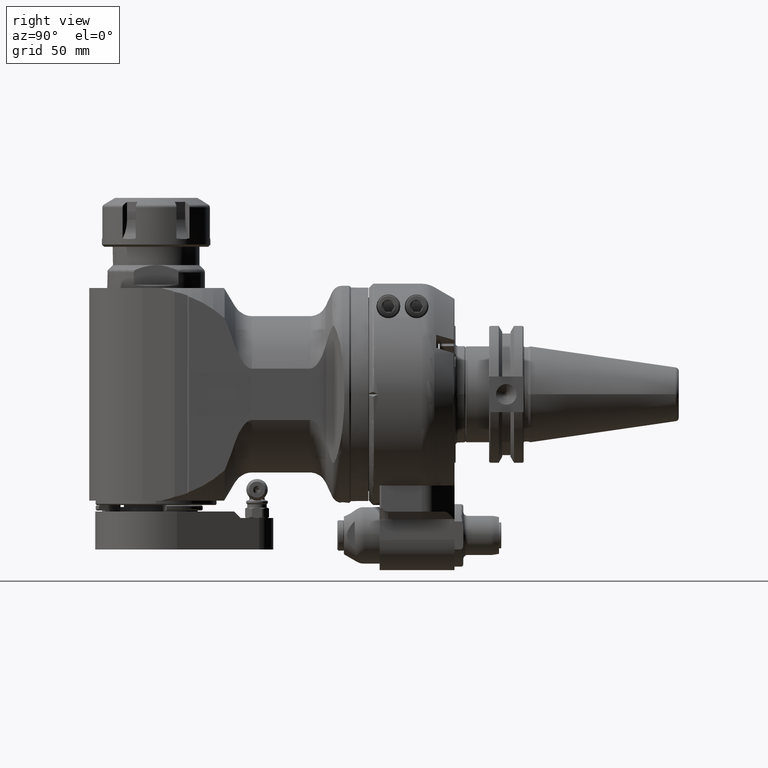
[diagram: clean part render]
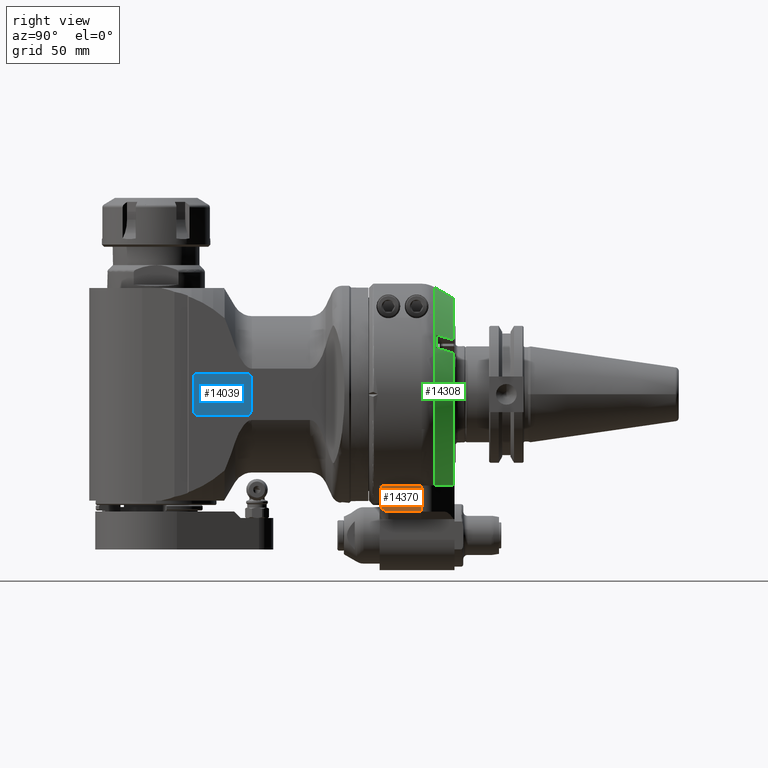
[diagram: same view with three faces highlighted in distinct colors, each labeled with its STEP entity id]
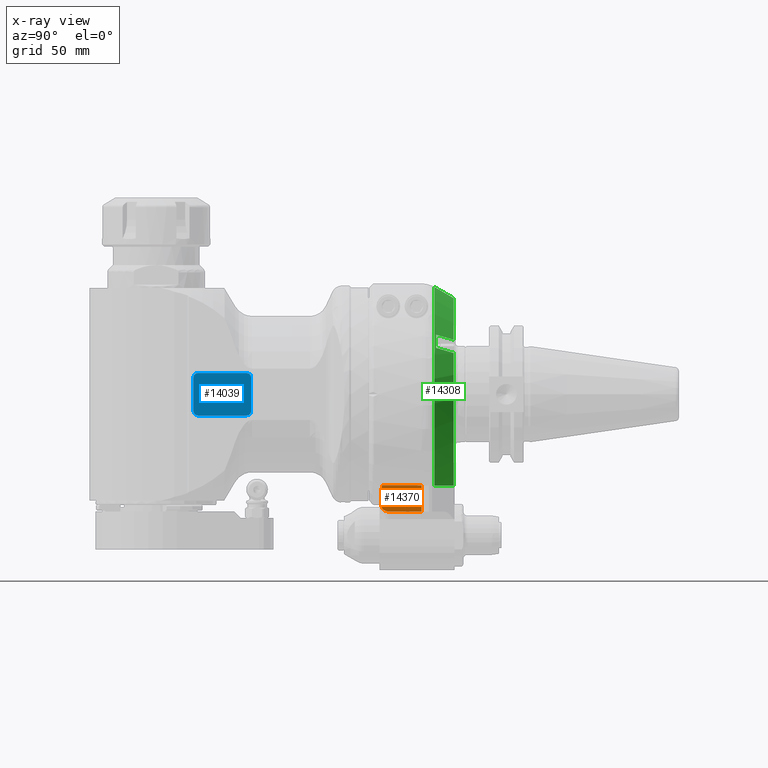
[diagram: x-ray of the same camera — body ghosted, the three highlighted faces saturated]
A machine part, right view with three faces highlighted in distinct colors.
The next image is the same camera in x-ray (body ghosted, the three faces saturated) — at least one of them is partly hidden behind the body in this view.
Their STEP definitions:

[orange] entity #14370 — the highlighted planar face has unit normal (-1, 0, 0).
#1328=LINE('',#30594,#2215);
#1382=LINE('',#31289,#2269);
#1385=LINE('',#31319,#2272);
#1386=LINE('',#31321,#2273);
#2215=VECTOR('',#19160,18.26953855035);
#2269=VECTOR('',#19438,12.03589877858);
#2272=VECTOR('',#19449,15.26953889725);
#2273=VECTOR('',#19450,10.59664825896);
#2819=PLANE('',#15909);
#3562=FACE_OUTER_BOUND('',#4519,.T.);
#4519=EDGE_LOOP('',(#12580,#12581,#12582,#12583,#12584));
#5799=B_SPLINE_CURVE_WITH_KNOTS('',3,(#31322,#31323,#31324,#31325,#31326,
#31327,#31328,#31329,#31330,#31331,#31332,#31333,#31334,#31335,#31336,#31337,
#31338,#31339),.UNSPECIFIED.,.F.,.F.,(4,1,1,1,1,1,1,1,1,1,1,1,1,1,1,4),
(0.,0.06666666666667,0.1333333333333,0.2,0.2666666666667,0.3333333333333,
0.4,0.4666666666667,0.5333333333333,0.6,0.6666666666667,0.7333333333333,
0.8,0.8666666666667,0.9333333333333,1.),.UNSPECIFIED.);
#6828=VERTEX_POINT('',#30591);
#6829=VERTEX_POINT('',#30593);
#6909=VERTEX_POINT('',#31283);
#6911=VERTEX_POINT('',#31318);
#6912=VERTEX_POINT('',#31320);
#8730=EDGE_CURVE('',#6828,#6829,#1328,.T.);
#8863=EDGE_CURVE('',#6829,#6909,#1382,.T.);
#8867=EDGE_CURVE('',#6911,#6909,#1385,.T.);
#8868=EDGE_CURVE('',#6912,#6828,#1386,.T.);
#8869=EDGE_CURVE('',#6911,#6912,#5799,.T.);
#12580=ORIENTED_EDGE('',*,*,#8867,.T.);
#12581=ORIENTED_EDGE('',*,*,#8863,.F.);
#12582=ORIENTED_EDGE('',*,*,#8730,.F.);
#12583=ORIENTED_EDGE('',*,*,#8868,.F.);
#12584=ORIENTED_EDGE('',*,*,#8869,.F.);
#14370=ADVANCED_FACE('',(#3562),#2819,.F.);
#15909=AXIS2_PLACEMENT_3D('',#31317,#19447,#19448);
#19160=DIRECTION('',(0.,1.,0.));
#19438=DIRECTION('',(2.941657496709E-10,-1.143139811099E-8,-1.));
#19447=DIRECTION('center_axis',(-1.,0.,0.));
#19448=DIRECTION('ref_axis',(0.,0.,-1.));
#19449=DIRECTION('',(2.318714747886E-10,1.,4.016106954191E-10));
#19450=DIRECTION('',(-5.163122273806E-14,-8.674213053834E-13,1.));
#30591=CARTESIAN_POINT('',(29.,6.,-42.));
#30593=CARTESIAN_POINT('',(29.,24.26953855035,-42.));
#30594=CARTESIAN_POINT('',(29.,6.,-42.));
#31283=CARTESIAN_POINT('',(29.0000000432431,24.2695384127614,-54.0358986870676));
#31289=CARTESIAN_POINT('',(29.,24.26953855035,-42.));
#31317=CARTESIAN_POINT('Origin',(29.,31.,-75.75));
#31318=CARTESIAN_POINT('',(29.,8.999999515516,-54.03589878471));
#31319=CARTESIAN_POINT('',(29.,8.999999515516,-54.03589878471));
#31320=CARTESIAN_POINT('',(29.,6.000000000009,-52.59664825896));
#31321=CARTESIAN_POINT('',(29.,6.000000000009,-52.59664825896));
#31322=CARTESIAN_POINT('Ctrl Pts',(29.,8.999999515516,-54.03589878471));
#31323=CARTESIAN_POINT('Ctrl Pts',(29.,8.941822423824,-54.03589878471));
#31324=CARTESIAN_POINT('Ctrl Pts',(29.,8.825250205095,-54.03237866056));
#31325=CARTESIAN_POINT('Ctrl Pts',(29.,8.649863222661,-54.01646159698));
#31326=CARTESIAN_POINT('Ctrl Pts',(29.,8.473571205094,-53.98980903555));
#31327=CARTESIAN_POINT('Ctrl Pts',(29.,8.295705798131,-53.95220468394));
#31328=CARTESIAN_POINT('Ctrl Pts',(29.,8.115100790789,-53.90314564314));
#31329=CARTESIAN_POINT('Ctrl Pts',(29.,7.931548709971,-53.84222486296));
#31330=CARTESIAN_POINT('Ctrl Pts',(29.,7.744868188066,-53.7690856182));
#31331=CARTESIAN_POINT('Ctrl Pts',(29.,7.55350807151,-53.6827038101));
#31332=CARTESIAN_POINT('Ctrl Pts',(29.,7.356774765178,-53.58217021859));
#31333=CARTESIAN_POINT('Ctrl Pts',(29.,7.154421994377,-53.46678645105));
#31334=CARTESIAN_POINT('Ctrl Pts',(29.,6.944619331666,-53.33482115363));
#31335=CARTESIAN_POINT('Ctrl Pts',(29.,6.725779619629,-53.18433128227));
#31336=CARTESIAN_POINT('Ctrl Pts',(29.,6.496817707885,-53.0134991793));
#31337=CARTESIAN_POINT('Ctrl Pts',(29.,6.256128857701,-52.81994752598));
#31338=CARTESIAN_POINT('Ctrl Pts',(29.,6.08671031888,-52.67391866067));
#31339=CARTESIAN_POINT('Ctrl Pts',(29.,6.000000000009,-52.59664825896));

[blue] entity #14039 — the highlighted planar face has unit normal (1, 0, -0).
#1025=LINE('',#27181,#1912);
#1028=LINE('',#27187,#1915);
#1029=LINE('',#27192,#1916);
#1030=LINE('',#27196,#1917);
#1912=VECTOR('',#17699,15.5);
#1915=VECTOR('',#17704,22.5);
#1916=VECTOR('',#17709,22.5);
#1917=VECTOR('',#17712,15.5);
#2671=PLANE('',#15215);
#3231=FACE_OUTER_BOUND('',#4135,.T.);
#4135=EDGE_LOOP('',(#10934,#10935,#10936,#10937,#10938,#10939,#10940,#10941));
#5052=CIRCLE('',#15216,2.);
#5053=CIRCLE('',#15217,2.);
#5054=CIRCLE('',#15218,2.);
#5055=CIRCLE('',#15219,2.);
#6360=VERTEX_POINT('',#27179);
#6361=VERTEX_POINT('',#27180);
#6362=VERTEX_POINT('',#27185);
#6363=VERTEX_POINT('',#27186);
#6364=VERTEX_POINT('',#27189);
#6365=VERTEX_POINT('',#27191);
#6366=VERTEX_POINT('',#27193);
#6367=VERTEX_POINT('',#27195);
#8023=EDGE_CURVE('',#6360,#6361,#1025,.T.);
#8026=EDGE_CURVE('',#6362,#6363,#1028,.T.);
#8027=EDGE_CURVE('',#6360,#6363,#5052,.T.);
#8028=EDGE_CURVE('',#6361,#6364,#5053,.T.);
#8029=EDGE_CURVE('',#6364,#6365,#1029,.T.);
#8030=EDGE_CURVE('',#6365,#6366,#5054,.T.);
#8031=EDGE_CURVE('',#6366,#6367,#1030,.T.);
#8032=EDGE_CURVE('',#6367,#6362,#5055,.T.);
#10934=ORIENTED_EDGE('',*,*,#8026,.T.);
#10935=ORIENTED_EDGE('',*,*,#8027,.F.);
#10936=ORIENTED_EDGE('',*,*,#8023,.T.);
#10937=ORIENTED_EDGE('',*,*,#8028,.T.);
#10938=ORIENTED_EDGE('',*,*,#8029,.T.);
#10939=ORIENTED_EDGE('',*,*,#8030,.T.);
#10940=ORIENTED_EDGE('',*,*,#8031,.T.);
#10941=ORIENTED_EDGE('',*,*,#8032,.T.);
#14039=ADVANCED_FACE('',(#3231),#2671,.T.);
#15215=AXIS2_PLACEMENT_3D('',#27184,#17702,#17703);
#15216=AXIS2_PLACEMENT_3D('',#27188,#17705,#17706);
#15217=AXIS2_PLACEMENT_3D('',#27190,#17707,#17708);
#15218=AXIS2_PLACEMENT_3D('',#27194,#17710,#17711);
#15219=AXIS2_PLACEMENT_3D('',#27197,#17713,#17714);
#17699=DIRECTION('',(0.,1.,0.));
#17702=DIRECTION('center_axis',(0.,0.,1.));
#17703=DIRECTION('ref_axis',(1.,0.,0.));
#17704=DIRECTION('',(1.,0.,0.));
#17705=DIRECTION('center_axis',(0.,0.,-1.));
#17706=DIRECTION('ref_axis',(1.,0.,0.));
#17707=DIRECTION('center_axis',(0.,0.,1.));
#17708=DIRECTION('ref_axis',(1.,0.,0.));
#17709=DIRECTION('',(-1.,0.,0.));
#17710=DIRECTION('center_axis',(0.,0.,1.));
#17711=DIRECTION('ref_axis',(0.,1.,0.));
#17712=DIRECTION('',(0.,-1.,0.));
#17713=DIRECTION('center_axis',(0.,0.,1.));
#17714=DIRECTION('ref_axis',(-1.,0.,0.));
#27179=CARTESIAN_POINT('',(260.8130969851,-7.75,33.6));
#27180=CARTESIAN_POINT('',(260.8130969851,7.75,33.6));
#27181=CARTESIAN_POINT('',(260.8130969851,-7.75,33.6));
#27184=CARTESIAN_POINT('Origin',(0.,0.,33.6));
#27185=CARTESIAN_POINT('',(236.3130969851,-9.75,33.6));
#27186=CARTESIAN_POINT('',(258.8130969851,-9.75,33.6));
#27187=CARTESIAN_POINT('',(236.3130969851,-9.75,33.6));
#27188=CARTESIAN_POINT('Origin',(258.8130969851,-7.75,33.6));
#27189=CARTESIAN_POINT('',(258.8130969851,9.75,33.6));
#27190=CARTESIAN_POINT('Origin',(258.8130969851,7.75,33.6));
#27191=CARTESIAN_POINT('',(236.3130969851,9.75,33.6));
#27192=CARTESIAN_POINT('',(258.8130969851,9.75,33.6));
#27193=CARTESIAN_POINT('',(234.3130969851,7.75,33.6));
#27194=CARTESIAN_POINT('Origin',(236.3130969851,7.75,33.6));
#27195=CARTESIAN_POINT('',(234.3130969851,-7.75,33.6));
#27196=CARTESIAN_POINT('',(234.3130969851,7.75,33.6));
#27197=CARTESIAN_POINT('Origin',(236.3130969851,-7.75,33.6));

[green] entity #14308 — the highlighted conical surface has half-angle 30 deg.
#540=(
BOUNDED_CURVE()
B_SPLINE_CURVE(2,(#30525,#30526,#30527),.UNSPECIFIED.,.F.,.F.)
B_SPLINE_CURVE_WITH_KNOTS((3,3),(-4.7303446066697,-2.88449165842057),
 .UNSPECIFIED.)
CURVE()
GEOMETRIC_REPRESENTATION_ITEM()
RATIONAL_B_SPLINE_CURVE((1.01131829676244,1.03049774946974,1.03298555512196))
REPRESENTATION_ITEM('')
);
#681=CONICAL_SURFACE('',#15789,46.84048999,0.523598775598299);
#3500=FACE_OUTER_BOUND('',#4446,.T.);
#4446=EDGE_LOOP('',(#12255,#12256,#12257,#12258,#12259,#12260,#12261,#12262));
#5328=CIRCLE('',#15773,48.90747728811);
#5335=CIRCLE('',#15788,44.28867513459);
#5336=CIRCLE('',#15790,44.28867513459);
#5337=CIRCLE('',#15791,49.39230484541);
#5774=B_SPLINE_CURVE_WITH_KNOTS('',3,(#30453,#30454,#30455,#30456,#30457,
#30458,#30459,#30460,#30461,#30462),.UNSPECIFIED.,.F.,.F.,(4,3,3,4),(7.66076698515017E-6,
0.3333333333333,0.6666666666667,1.),.UNSPECIFIED.);
#5775=B_SPLINE_CURVE_WITH_KNOTS('',3,(#30483,#30484,#30485,#30486,#30487,
#30488,#30489,#30490,#30491,#30492),.UNSPECIFIED.,.F.,.F.,(4,3,3,4),(0.,
0.3333333333333,0.6666666666667,0.999992845897291),.UNSPECIFIED.);
#5777=B_SPLINE_CURVE_WITH_KNOTS('',3,(#30530,#30531,#30532,#30533,#30534,
#30535,#30536,#30537,#30538,#30539),.UNSPECIFIED.,.F.,.F.,(4,3,3,4),(2.50178337008359E-6,
0.3333333333333,0.6666666666667,1.),.UNSPECIFIED.);
#6810=VERTEX_POINT('',#30450);
#6811=VERTEX_POINT('',#30452);
#6813=VERTEX_POINT('',#30466);
#6819=VERTEX_POINT('',#30481);
#6824=VERTEX_POINT('',#30519);
#6825=VERTEX_POINT('',#30523);
#6826=VERTEX_POINT('',#30524);
#6827=VERTEX_POINT('',#30529);
#8703=EDGE_CURVE('',#6811,#6810,#5774,.T.);
#8706=EDGE_CURVE('',#6813,#6810,#5328,.T.);
#8714=EDGE_CURVE('',#6813,#6819,#5775,.T.);
#8723=EDGE_CURVE('',#6824,#6819,#5335,.T.);
#8724=EDGE_CURVE('',#6825,#6826,#540,.T.);
#8725=EDGE_CURVE('',#6811,#6825,#5336,.T.);
#8726=EDGE_CURVE('',#6824,#6827,#5777,.T.);
#8727=EDGE_CURVE('',#6826,#6827,#5337,.T.);
#12255=ORIENTED_EDGE('',*,*,#8724,.F.);
#12256=ORIENTED_EDGE('',*,*,#8725,.F.);
#12257=ORIENTED_EDGE('',*,*,#8703,.T.);
#12258=ORIENTED_EDGE('',*,*,#8706,.F.);
#12259=ORIENTED_EDGE('',*,*,#8714,.T.);
#12260=ORIENTED_EDGE('',*,*,#8723,.F.);
#12261=ORIENTED_EDGE('',*,*,#8726,.T.);
#12262=ORIENTED_EDGE('',*,*,#8727,.F.);
#14308=ADVANCED_FACE('',(#3500),#681,.T.);
#15773=AXIS2_PLACEMENT_3D('',#30468,#19113,#19114);
#15788=AXIS2_PLACEMENT_3D('',#30521,#19148,#19149);
#15789=AXIS2_PLACEMENT_3D('',#30522,#19150,#19151);
#15790=AXIS2_PLACEMENT_3D('',#30528,#19152,#19153);
#15791=AXIS2_PLACEMENT_3D('',#30540,#19154,#19155);
#19113=DIRECTION('center_axis',(0.,1.,0.));
#19114=DIRECTION('ref_axis',(0.828023092261376,0.,0.560693997365684));
#19148=DIRECTION('center_axis',(0.,1.,0.));
#19149=DIRECTION('ref_axis',(0.0338687033523017,0.,0.999426290895549));
#19150=DIRECTION('center_axis',(0.,-1.,0.));
#19151=DIRECTION('ref_axis',(0.,0.,1.));
#19152=DIRECTION('center_axis',(0.,1.,0.));
#19153=DIRECTION('ref_axis',(0.902830377486504,0.,0.429996871485802));
#19154=DIRECTION('center_axis',(0.,-1.,0.));
#19155=DIRECTION('ref_axis',(0.526241939180605,0.,-0.850334887822108));
#30450=CARTESIAN_POINT('',(43.9965205788,31.,21.35995111525));
#30452=CARTESIAN_POINT('',(39.9851327385036,39.0000574311685,19.0439746816784));
#30453=CARTESIAN_POINT('Ctrl Pts',(39.9851325718324,39.0000574888253,19.0439751696042));
#30454=CARTESIAN_POINT('Ctrl Pts',(40.4021284835291,38.1686739893507,19.2847278714732));
#30455=CARTESIAN_POINT('Ctrl Pts',(40.8285997896714,37.3183137318181,19.5309511948761));
#30456=CARTESIAN_POINT('Ctrl Pts',(41.2642990955139,36.4494676081702,19.78250230639));
#30457=CARTESIAN_POINT('Ctrl Pts',(41.7000084149592,35.5806015159801,20.0340591992602));
#30458=CARTESIAN_POINT('Ctrl Pts',(42.1449461582807,34.6932487079499,20.2909441251396));
#30459=CARTESIAN_POINT('Ctrl Pts',(42.6001961920632,33.7852447443823,20.5537828546925));
#30460=CARTESIAN_POINT('Ctrl Pts',(43.0554462258456,32.8772407808149,20.8166215842453));
#30461=CARTESIAN_POINT('Ctrl Pts',(43.521008550089,31.94858566171,21.0854141174718));
#30462=CARTESIAN_POINT('Ctrl Pts',(43.9965205787995,31.,21.3599511152508));
#30466=CARTESIAN_POINT('',(40.4965205788,31.,27.42212894174));
#30468=CARTESIAN_POINT('Origin',(0.,31.,0.));
#30481=CARTESIAN_POINT('',(36.4851341375781,39.0000536663798,25.1061544459899));
#30483=CARTESIAN_POINT('Ctrl Pts',(40.4965205787991,31.,27.4221289417415));
#30484=CARTESIAN_POINT('Ctrl Pts',(40.0214323904192,31.94774015446,27.1478366482915));
#30485=CARTESIAN_POINT('Ctrl Pts',(39.5561504547519,32.8758360971199,26.8792059974849));
#30486=CARTESIAN_POINT('Ctrl Pts',(39.1009807698509,33.7836798905781,26.6164136573804));
#30487=CARTESIAN_POINT('Ctrl Pts',(38.6458110849499,34.6915236840366,26.3536213172758));
#30488=CARTESIAN_POINT('Ctrl Pts',(38.2007536508152,35.5791153282934,26.0966672878733));
#30489=CARTESIAN_POINT('Ctrl Pts',(37.7648941095113,36.4482810659344,25.8450236643726));
#30490=CARTESIAN_POINT('Ctrl Pts',(37.3290439227594,37.3174281492723,25.593385441725));
#30491=CARTESIAN_POINT('Ctrl Pts',(36.9023912340264,38.1681501169107,25.3470573970345));
#30492=CARTESIAN_POINT('Ctrl Pts',(36.4851344544523,39.000053720172,25.1061540830262));
#30519=CARTESIAN_POINT('',(1.49999993762843,39.0000000328686,44.263266303079));
#30521=CARTESIAN_POINT('Origin',(0.,39.,0.));
#30522=CARTESIAN_POINT('Origin',(0.,34.58012701892,0.));
#30523=CARTESIAN_POINT('',(14.0529977316541,38.9999999990145,-41.9999999997844));
#30524=CARTESIAN_POINT('',(25.9923022789438,30.1602540400476,-42.0000000006684));
#30525=CARTESIAN_POINT('Ctrl Pts',(14.0529977317922,38.9999999985814,-42.));
#30526=CARTESIAN_POINT('Ctrl Pts',(19.6974303639645,35.8978898919754,-42.));
#30527=CARTESIAN_POINT('Ctrl Pts',(25.9923022783559,30.1602540415666,-42.));
#30528=CARTESIAN_POINT('Origin',(0.,39.,0.));
#30529=CARTESIAN_POINT('',(1.50000009631114,30.160265019228,49.3695164173488));
#30530=CARTESIAN_POINT('Ctrl Pts',(1.5,39.0000000332564,44.2632663037565));
#30531=CARTESIAN_POINT('Ctrl Pts',(1.5,38.065418345636,44.8031570327464));
#30532=CARTESIAN_POINT('Ctrl Pts',(1.5,37.1150044702991,45.3521823870118));
#30533=CARTESIAN_POINT('Ctrl Pts',(1.5,36.1489340606836,45.910241021564));
#30534=CARTESIAN_POINT('Ctrl Pts',(1.5,35.1828564003168,46.4683038445733));
#30535=CARTESIAN_POINT('Ctrl Pts',(1.5,34.2011219706532,47.0354000834667));
#30536=CARTESIAN_POINT('Ctrl Pts',(1.5,33.2030775420739,47.6119071932785));
#30537=CARTESIAN_POINT('Ctrl Pts',(1.5,32.2050331134948,48.1884143030901));
#30538=CARTESIAN_POINT('Ctrl Pts',(1.5,31.190678686,48.77433228382));
#30539=CARTESIAN_POINT('Ctrl Pts',(1.5,30.16027599869,49.36951007704));
#30540=CARTESIAN_POINT('Origin',(0.,30.16025403784,0.));